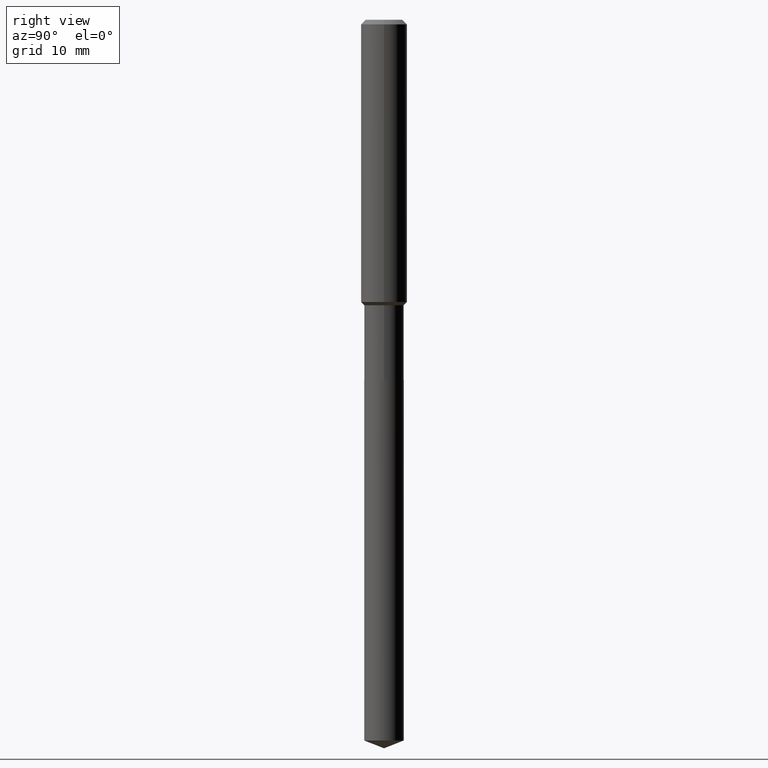
[diagram: clean part render]
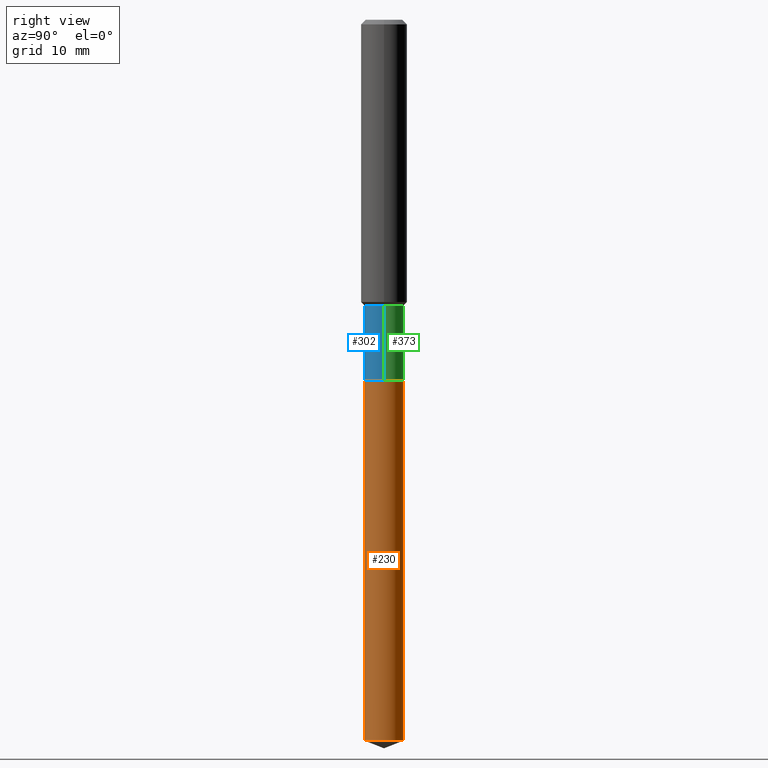
[diagram: same view with three faces highlighted in distinct colors, each labeled with its STEP entity id]
A machine part, right view with three faces highlighted in distinct colors.
Their STEP definitions:

[orange] entity #230 — the highlighted cylindrical surface (edge-blend (fillet) strip) has radius 2.5794 mm, axis along (-0, 0, 1).
#2 = ORIENTED_EDGE ( 'NONE', *, *, #412, .F. ) ;
#17 = AXIS2_PLACEMENT_3D ( 'NONE', #149, #109, #264 ) ;
#19 = LINE ( 'NONE', #127, #143 ) ;
#22 = DIRECTION ( 'NONE',  ( -6.982962677686266711E-15, -1.000000000000000000, 5.380301316916323039E-15 ) ) ;
#24 = VERTEX_POINT ( 'NONE', #255 ) ;
#28 = DIRECTION ( 'NONE',  ( -2.445330354646487299E-29, 3.491679609326663871E-15, 1.000000000000000000 ) ) ;
#39 = VERTEX_POINT ( 'NONE', #216 ) ;
#52 = CARTESIAN_POINT ( 'NONE',  ( 4.525095478964977394E-29, -6.460637069395357576E-15, -1.850400000000000267 ) ) ;
#58 = ORIENTED_EDGE ( 'NONE', *, *, #467, .T. ) ;
#67 = VECTOR ( 'NONE', #183, 39.37007874015748143 ) ;
#69 = CARTESIAN_POINT ( 'NONE',  ( -7.091198599189951267E-16, -0.1015500000000064545, -1.850400000000000045 ) ) ;
#85 = ORIENTED_EDGE ( 'NONE', *, *, #162, .F. ) ;
#93 = DIRECTION ( 'NONE',  ( -2.445330354646487579E-29, 3.491679609326664266E-15, 1.000000000000000000 ) ) ;
#99 = CARTESIAN_POINT ( 'NONE',  ( 9.048463634945760829E-29, -1.291954039331821326E-14, -3.700198391201303227 ) ) ;
#109 = DIRECTION ( 'NONE',  ( -2.445330354646487299E-29, 3.491679609326663871E-15, 1.000000000000000000 ) ) ;
#116 = CIRCLE ( 'NONE', #206, 0.1015500000000000014 ) ;
#127 = CARTESIAN_POINT ( 'NONE',  ( 7.215561481644269108E-16, 0.1015499999999935482, -1.850400000000000489 ) ) ;
#143 = VECTOR ( 'NONE', #93, 39.37007874015748143 ) ;
#149 = CARTESIAN_POINT ( 'NONE',  ( 4.525095478964977394E-29, -6.460637069395357576E-15, -1.850400000000000267 ) ) ;
#162 = EDGE_CURVE ( 'NONE', #324, #24, #372, .T. ) ;
#183 = DIRECTION ( 'NONE',  ( -2.445330354646487579E-29, 3.491679609326664266E-15, 1.000000000000000000 ) ) ;
#190 = CARTESIAN_POINT ( 'NONE',  ( -7.091198599189497672E-16, -0.1015500000000129216, -3.700198391201302783 ) ) ;
#201 = DIRECTION ( 'NONE',  ( -2.445330354646487299E-29, 3.491679609326663871E-15, 1.000000000000000000 ) ) ;
#202 = VERTEX_POINT ( 'NONE', #375 ) ;
#206 = AXIS2_PLACEMENT_3D ( 'NONE', #99, #28, #22 ) ;
#216 = CARTESIAN_POINT ( 'NONE',  ( 7.215561481644725661E-16, 0.1015499999999935482, -1.850400000000000489 ) ) ;
#230 = ADVANCED_FACE ( 'NONE', ( #342 ), #487, .T. ) ;
#255 = CARTESIAN_POINT ( 'NONE',  ( -7.091198599189951267E-16, -0.1015500000000064545, -1.850400000000000045 ) ) ;
#256 = CIRCLE ( 'NONE', #285, 0.1015500000000000014 ) ;
#264 = DIRECTION ( 'NONE',  ( -6.982962677686266711E-15, -1.000000000000000000, 2.690150658458161520E-15 ) ) ;
#284 = ORIENTED_EDGE ( 'NONE', *, *, #485, .T. ) ;
#285 = AXIS2_PLACEMENT_3D ( 'NONE', #52, #201, #357 ) ;
#324 = VERTEX_POINT ( 'NONE', #190 ) ;
#342 = FACE_OUTER_BOUND ( 'NONE', #354, .T. ) ;
#354 = EDGE_LOOP ( 'NONE', ( #58, #284, #2, #85 ) ) ;
#357 = DIRECTION ( 'NONE',  ( -6.982962677686266711E-15, -1.000000000000000000, 2.690150658458161520E-15 ) ) ;
#372 = LINE ( 'NONE', #69, #67 ) ;
#375 = CARTESIAN_POINT ( 'NONE',  ( 7.215561481644721717E-16, 0.1015499999999870812, -3.700198391201303671 ) ) ;
#412 = EDGE_CURVE ( 'NONE', #24, #39, #256, .T. ) ;
#467 = EDGE_CURVE ( 'NONE', #324, #202, #116, .T. ) ;
#485 = EDGE_CURVE ( 'NONE', #202, #39, #19, .T. ) ;
#487 = CYLINDRICAL_SURFACE ( 'NONE', #17, 0.1015500000000000014 ) ;

[blue] entity #302 — the highlighted cylindrical surface (edge-blend (fillet) strip) has radius 2.5794 mm, axis along (-0, 0, 1).
#9 = AXIS2_PLACEMENT_3D ( 'NONE', #483, #145, #448 ) ;
#49 = EDGE_CURVE ( 'NONE', #439, #81, #54, .T. ) ;
#54 = LINE ( 'NONE', #208, #384 ) ;
#70 = VECTOR ( 'NONE', #163, 39.37007874015748143 ) ;
#75 = CARTESIAN_POINT ( 'NONE',  ( 0.000000000000000000, 0.000000000000000000, 0.000000000000000000 ) ) ;
#81 = VERTEX_POINT ( 'NONE', #178 ) ;
#82 = EDGE_CURVE ( 'NONE', #463, #439, #341, .T. ) ;
#87 = DIRECTION ( 'NONE',  ( 1.000000000000000000, -6.982962677686266711E-15, 4.876176775795935793E-29 ) ) ;
#103 = CARTESIAN_POINT ( 'NONE',  ( -0.1015499999999999597, -5.066447041302844667E-15, -1.465600000000000236 ) ) ;
#119 = CYLINDRICAL_SURFACE ( 'NONE', #196, 0.1015499999999999736 ) ;
#134 = CIRCLE ( 'NONE', #186, 0.1015499999999999597 ) ;
#137 = EDGE_LOOP ( 'NONE', ( #286, #327, #470, #431 ) ) ;
#145 = DIRECTION ( 'NONE',  ( -2.445468806185136597E-29, 3.491481338843145583E-15, 1.000000000000000000 ) ) ;
#155 = CARTESIAN_POINT ( 'NONE',  ( 3.584079082344936633E-29, -5.117115050208514787E-15, -1.465600000000000236 ) ) ;
#160 = FACE_OUTER_BOUND ( 'NONE', #137, .T. ) ;
#163 = DIRECTION ( 'NONE',  ( -2.445468806185136877E-29, 3.491481338843145188E-15, 1.000000000000000000 ) ) ;
#171 = VERTEX_POINT ( 'NONE', #103 ) ;
#178 = CARTESIAN_POINT ( 'NONE',  ( 0.1015499999999999597, -5.826234910127555569E-15, -1.465600000000000236 ) ) ;
#186 = AXIS2_PLACEMENT_3D ( 'NONE', #155, #237, #199 ) ;
#196 = AXIS2_PLACEMENT_3D ( 'NONE', #75, #389, #87 ) ;
#199 = DIRECTION ( 'NONE',  ( 1.000000000000000000, -6.982962677686267499E-15, 0.000000000000000000 ) ) ;
#208 = CARTESIAN_POINT ( 'NONE',  ( 0.1015499999999999736, -7.091198599190401904E-16, 4.951757515820771671E-30 ) ) ;
#237 = DIRECTION ( 'NONE',  ( -2.445468806185136597E-29, 3.491481338843145583E-15, 1.000000000000000000 ) ) ;
#286 = ORIENTED_EDGE ( 'NONE', *, *, #314, .F. ) ;
#302 = ADVANCED_FACE ( 'NONE', ( #160 ), #119, .T. ) ;
#314 = EDGE_CURVE ( 'NONE', #463, #171, #392, .T. ) ;
#327 = ORIENTED_EDGE ( 'NONE', *, *, #82, .T. ) ;
#328 = CARTESIAN_POINT ( 'NONE',  ( 0.1015499999999999875, -7.168011188644976066E-15, -1.849900000000000322 ) ) ;
#336 = DIRECTION ( 'NONE',  ( -2.445468806185136877E-29, 3.491481338843145188E-15, 1.000000000000000000 ) ) ;
#341 = CIRCLE ( 'NONE', #9, 0.1015499999999999875 ) ;
#380 = EDGE_CURVE ( 'NONE', #171, #81, #134, .T. ) ;
#382 = CARTESIAN_POINT ( 'NONE',  ( -0.1015499999999999736, 7.215561481643815513E-16, -4.995178584153855700E-30 ) ) ;
#384 = VECTOR ( 'NONE', #336, 39.37007874015748143 ) ;
#389 = DIRECTION ( 'NONE',  ( -2.445468806185136597E-29, 3.491481338843145583E-15, 1.000000000000000000 ) ) ;
#392 = LINE ( 'NONE', #382, #70 ) ;
#431 = ORIENTED_EDGE ( 'NONE', *, *, #380, .F. ) ;
#439 = VERTEX_POINT ( 'NONE', #328 ) ;
#448 = DIRECTION ( 'NONE',  ( 1.000000000000000000, -6.982962677686265922E-15, 0.000000000000000000 ) ) ;
#463 = VERTEX_POINT ( 'NONE', #469 ) ;
#469 = CARTESIAN_POINT ( 'NONE',  ( -0.1015499999999999875, -5.066447041302844667E-15, -1.849900000000000322 ) ) ;
#470 = ORIENTED_EDGE ( 'NONE', *, *, #49, .T. ) ;
#483 = CARTESIAN_POINT ( 'NONE',  ( 4.523872744561885153E-29, -6.458891328725936072E-15, -1.849900000000000322 ) ) ;

[green] entity #373 — the highlighted cylindrical surface (edge-blend (fillet) strip) has radius 2.5794 mm, axis along (-0, 0, 1).
#34 = DIRECTION ( 'NONE',  ( -2.445468806185136597E-29, 3.491481338843145583E-15, 1.000000000000000000 ) ) ;
#35 = CARTESIAN_POINT ( 'NONE',  ( 3.584079082344936633E-29, -5.117115050208514787E-15, -1.465600000000000236 ) ) ;
#49 = EDGE_CURVE ( 'NONE', #439, #81, #54, .T. ) ;
#54 = LINE ( 'NONE', #208, #384 ) ;
#70 = VECTOR ( 'NONE', #163, 39.37007874015748143 ) ;
#81 = VERTEX_POINT ( 'NONE', #178 ) ;
#98 = EDGE_CURVE ( 'NONE', #439, #463, #288, .T. ) ;
#103 = CARTESIAN_POINT ( 'NONE',  ( -0.1015499999999999597, -5.066447041302844667E-15, -1.465600000000000236 ) ) ;
#106 = AXIS2_PLACEMENT_3D ( 'NONE', #35, #34, #343 ) ;
#122 = FACE_OUTER_BOUND ( 'NONE', #212, .T. ) ;
#163 = DIRECTION ( 'NONE',  ( -2.445468806185136877E-29, 3.491481338843145188E-15, 1.000000000000000000 ) ) ;
#171 = VERTEX_POINT ( 'NONE', #103 ) ;
#178 = CARTESIAN_POINT ( 'NONE',  ( 0.1015499999999999597, -5.826234910127555569E-15, -1.465600000000000236 ) ) ;
#195 = CARTESIAN_POINT ( 'NONE',  ( 0.000000000000000000, 0.000000000000000000, 0.000000000000000000 ) ) ;
#208 = CARTESIAN_POINT ( 'NONE',  ( 0.1015499999999999736, -7.091198599190401904E-16, 4.951757515820771671E-30 ) ) ;
#212 = EDGE_LOOP ( 'NONE', ( #481, #235, #393, #281 ) ) ;
#219 = EDGE_CURVE ( 'NONE', #81, #171, #278, .T. ) ;
#234 = DIRECTION ( 'NONE',  ( 1.000000000000000000, -6.982962677686266711E-15, 4.876176775795935793E-29 ) ) ;
#235 = ORIENTED_EDGE ( 'NONE', *, *, #314, .T. ) ;
#277 = CYLINDRICAL_SURFACE ( 'NONE', #482, 0.1015499999999999736 ) ;
#278 = CIRCLE ( 'NONE', #106, 0.1015499999999999597 ) ;
#281 = ORIENTED_EDGE ( 'NONE', *, *, #49, .F. ) ;
#288 = CIRCLE ( 'NONE', #346, 0.1015499999999999875 ) ;
#314 = EDGE_CURVE ( 'NONE', #463, #171, #392, .T. ) ;
#328 = CARTESIAN_POINT ( 'NONE',  ( 0.1015499999999999875, -7.168011188644976066E-15, -1.849900000000000322 ) ) ;
#336 = DIRECTION ( 'NONE',  ( -2.445468806185136877E-29, 3.491481338843145188E-15, 1.000000000000000000 ) ) ;
#343 = DIRECTION ( 'NONE',  ( 1.000000000000000000, -6.982962677686267499E-15, 0.000000000000000000 ) ) ;
#346 = AXIS2_PLACEMENT_3D ( 'NONE', #486, #450, #455 ) ;
#355 = DIRECTION ( 'NONE',  ( -2.445468806185136597E-29, 3.491481338843145583E-15, 1.000000000000000000 ) ) ;
#373 = ADVANCED_FACE ( 'NONE', ( #122 ), #277, .T. ) ;
#382 = CARTESIAN_POINT ( 'NONE',  ( -0.1015499999999999736, 7.215561481643815513E-16, -4.995178584153855700E-30 ) ) ;
#384 = VECTOR ( 'NONE', #336, 39.37007874015748143 ) ;
#392 = LINE ( 'NONE', #382, #70 ) ;
#393 = ORIENTED_EDGE ( 'NONE', *, *, #219, .F. ) ;
#439 = VERTEX_POINT ( 'NONE', #328 ) ;
#450 = DIRECTION ( 'NONE',  ( -2.445468806185136597E-29, 3.491481338843145583E-15, 1.000000000000000000 ) ) ;
#455 = DIRECTION ( 'NONE',  ( 1.000000000000000000, -6.982962677686265922E-15, 0.000000000000000000 ) ) ;
#463 = VERTEX_POINT ( 'NONE', #469 ) ;
#469 = CARTESIAN_POINT ( 'NONE',  ( -0.1015499999999999875, -5.066447041302844667E-15, -1.849900000000000322 ) ) ;
#481 = ORIENTED_EDGE ( 'NONE', *, *, #98, .T. ) ;
#482 = AXIS2_PLACEMENT_3D ( 'NONE', #195, #355, #234 ) ;
#486 = CARTESIAN_POINT ( 'NONE',  ( 4.523872744561885153E-29, -6.458891328725936072E-15, -1.849900000000000322 ) ) ;